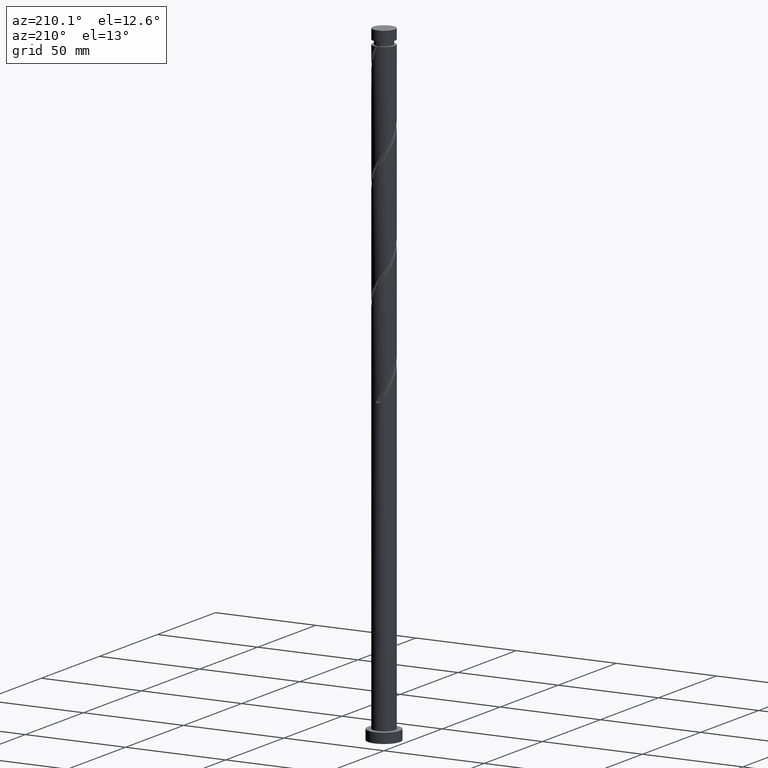
[diagram: clean part render]
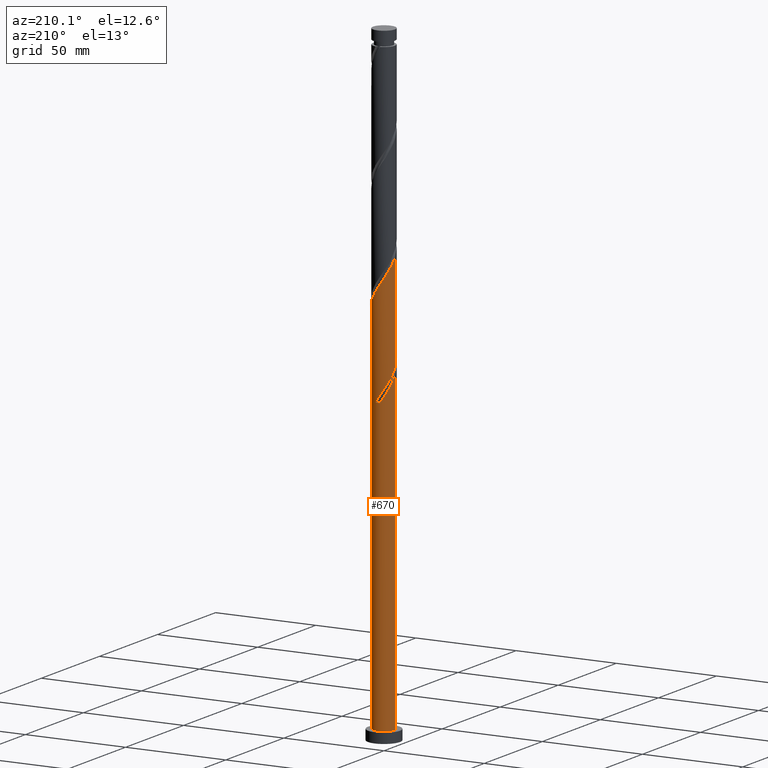
[diagram: same view with one face highlighted and labeled with its STEP entity id]
A machine part, auxiliary view. The second image highlights one B-rep face of the part: STEP entity #670.
In plain terms, the highlighted cylindrical surface (edge-blend (fillet) strip) has radius 5.5 mm, axis along (-0, -0, -1).
Its self-contained STEP definition (entity closure, byte-faithful):
#23 = CARTESIAN_POINT ( 'NONE',  ( -0.7518644484526483263, 5.483496091962813068, 153.1132921569053735 ) ) ;
#36 = CARTESIAN_POINT ( 'NONE',  ( -5.500000000000006217, -1.440337144827273553E-15, 214.2512750789992992 ) ) ;
#64 = CARTESIAN_POINT ( 'NONE',  ( -1.094486180817284104, 5.390000000000005898, 150.3007921569053735 ) ) ;
#82 = CARTESIAN_POINT ( 'NONE',  ( -2.266432961200590235, 5.011315359502294342, 152.1757921569053451 ) ) ;
#100 = DIRECTION ( 'NONE',  ( 0.000000000000000000, -0.000000000000000000, -1.000000000000000000 ) ) ;
#101 = CARTESIAN_POINT ( 'NONE',  ( 0.1323427068484833435, 5.498407533817776027, 200.9257921569053451 ) ) ;
#111 = CARTESIAN_POINT ( 'NONE',  ( 3.056606248755808775, 4.614237507918885761, 196.2382921569053167 ) ) ;
#116 = EDGE_CURVE ( 'NONE', #251, #1590, #287, .T. ) ;
#121 = CARTESIAN_POINT ( 'NONE',  ( -5.483496091962820174, 0.7518644484526507688, 160.6132921569054304 ) ) ;
#146 = CARTESIAN_POINT ( 'NONE',  ( -1.953206308703044236, 5.178707817116261047, 154.9882921569053735 ) ) ;
#160 = ORIENTED_EDGE ( 'NONE', *, *, #356, .F. ) ;
#234 = CARTESIAN_POINT ( 'NONE',  ( -2.266432961200590235, 5.011315359502294342, 204.6757921569053451 ) ) ;
#242 = CARTESIAN_POINT ( 'NONE',  ( 4.006735188219782806, 3.818390062696570553, 194.3632921569053735 ) ) ;
#251 = VERTEX_POINT ( 'NONE', #64 ) ;
#252 = CARTESIAN_POINT ( 'NONE',  ( -5.500000000000007105, 0.06618093441511935238, 214.1509123907742662 ) ) ;
#273 = CARTESIAN_POINT ( 'NONE',  ( -5.483496091962820174, 0.7518644484526507688, 213.1132921569054020 ) ) ;
#279 = LINE ( 'NONE', #1477, #1736 ) ;
#283 = DIRECTION ( 'NONE',  ( -0.000000000000000000, -0.000000000000000000, -1.000000000000000000 ) ) ;
#287 = CIRCLE ( 'NONE', #1621, 5.500000000000000000 ) ;
#307 = CARTESIAN_POINT ( 'NONE',  ( -5.499999999999998224, 2.686639233874724183E-15, 165.1003092348113910 ) ) ;
#356 = EDGE_CURVE ( 'NONE', #251, #1721, #1414, .T. ) ;
#374 = CARTESIAN_POINT ( 'NONE',  ( -3.324731329109432920, 4.381342441448544456, 154.0507921569053735 ) ) ;
#388 = CARTESIAN_POINT ( 'NONE',  ( -5.498407533817776027, 0.1323427068484820668, 214.0507921569053167 ) ) ;
#399 = EDGE_CURVE ( 'NONE', #1032, #1823, #418, .T. ) ;
#401 = CARTESIAN_POINT ( 'NONE',  ( -0.4871790347556850809, 5.513318975672735434, 201.8632921569054020 ) ) ;
#418 =( BOUNDED_CURVE ( )  B_SPLINE_CURVE ( 2, ( #551, #1142, #984, #1606, #1576, #994, #1586, #242, #421, #111, #1738, #1131, #716, #707, #101, #401, #1005, #1564, #234, #1287, #1877, #1717, #1597, #852, #695, #1886, #1727, #273, #388, #252, #863 ),
 .UNSPECIFIED., .F., .T. ) 
 B_SPLINE_CURVE_WITH_KNOTS ( ( 3, 2, 2, 2, 2, 2, 2, 2, 2, 2, 2, 2, 2, 2, 2, 3 ),
 ( 0.1795303401299220836, 0.1875000000000000000, 0.1964285714285713969, 0.2053571428571429047, 0.2142857142857143016, 0.2232142857142856984, 0.2321428571428570953, 0.2410714285714286031, 0.2500000000000000000, 0.2589285714285713969, 0.2678571428571429047, 0.2767857142857143016, 0.2857142857142856984, 0.2946428571428570953, 0.3035714285714286031, 0.3045303401299224721 ),
 .UNSPECIFIED. ) 
 CURVE ( )  GEOMETRIC_REPRESENTATION_ITEM ( )  RATIONAL_B_SPLINE_CURVE ( ( 0.9079949616362038567, 0.9039886423360669054, 0.9090909090909338186, 0.9033747362666085801, 0.9090909090909338186, 0.9033747362666085801, 0.9090909090909338186, 0.9033747362666085801, 0.9090909090909338186, 0.9033747362666085801, 0.9090909090909338186, 0.9033747362666085801, 0.9090909090909338186, 0.9033747362666085801, 0.9090909090909338186, 0.9033747362666085801, 0.9090909090909338186, 0.9033747362666085801, 0.9090909090909338186, 0.9033747362666085801, 0.9090909090909338186, 0.9033747362666085801, 0.9090909090909338186, 0.9033747362666085801, 0.9090909090909338186, 0.9033747362666085801, 0.9090909090909338186, 0.9033747362666085801, 0.9090909090909338186, 0.9084770030214752712, 0.9079949616362035236 ) ) 
 REPRESENTATION_ITEM ( '' )  );
#421 = CARTESIAN_POINT ( 'NONE',  ( 3.531670718487794680, 4.216313785307728601, 195.3007921569053451 ) ) ;
#443 = VERTEX_POINT ( 'NONE', #563 ) ;
#447 = CARTESIAN_POINT ( 'NONE',  ( -0.1323427068484809010, 5.498407533817768034, 152.1757921569053451 ) ) ;
#451 = VERTEX_POINT ( 'NONE', #1161 ) ;
#453 = CIRCLE ( 'NONE', #844, 5.500000000000000000 ) ;
#459 = CYLINDRICAL_SURFACE ( 'NONE', #1339, 5.500000000000000000 ) ;
#480 =( BOUNDED_CURVE ( )  B_SPLINE_CURVE ( 2, ( #307, #1036, #1360, #609, #735, #1197, #1183, #773, #1801, #1771, #600, #146, #1617, #23, #447, #1510, #909 ),
 .UNSPECIFIED., .F., .T. ) 
 B_SPLINE_CURVE_WITH_KNOTS ( ( 3, 2, 2, 2, 2, 2, 2, 2, 3 ),
 ( 0.9295303401299220836, 0.9375000000000000000, 0.9464285714285713969, 0.9553571428571429047, 0.9642857142857143016, 0.9732142857142856984, 0.9821428571428570953, 0.9910714285714286031, 1.000000000000000000 ),
 .UNSPECIFIED. ) 
 CURVE ( )  GEOMETRIC_REPRESENTATION_ITEM ( )  RATIONAL_B_SPLINE_CURVE ( ( 0.9079949616361981946, 0.9039886423360612433, 0.9090909090909280454, 0.9033747362666029179, 0.9090909090909280454, 0.9033747362666029179, 0.9090909090909280454, 0.9033747362666029179, 0.9090909090909280454, 0.9033747362666029179, 0.9090909090909280454, 0.9033747362666029179, 0.9090909090909280454, 0.9033747362666029179, 0.9090909090909280454, 0.9033747362666029179, 0.9090909090909280454 ) ) 
 REPRESENTATION_ITEM ( '' )  );
#487 = ORIENTED_EDGE ( 'NONE', *, *, #633, .F. ) ;
#498 = CARTESIAN_POINT ( 'NONE',  ( 1.094486180817286103, 5.389999999999997904, 150.3007921569053735 ) ) ;
#504 = ORIENTED_EDGE ( 'NONE', *, *, #116, .T. ) ;
#551 = CARTESIAN_POINT ( 'NONE',  ( 5.500000000000006217, 6.268824879040983257E-16, 188.0012750789992424 ) ) ;
#563 = CARTESIAN_POINT ( 'NONE',  ( -5.500000000000000000, 0.000000000000000000, 5.000000000000000000 ) ) ;
#572 = CARTESIAN_POINT ( 'NONE',  ( -5.178707817116268153, 1.953206308703048233, 158.7382921569054020 ) ) ;
#587 = VECTOR ( 'NONE', #770, 1000.000000000000000 ) ;
#600 = CARTESIAN_POINT ( 'NONE',  ( -2.504906278729422731, 4.896472662517569852, 155.9257921569053451 ) ) ;
#609 = CARTESIAN_POINT ( 'NONE',  ( -5.266681024327271921, 1.701793326878883406, 162.4882921569053735 ) ) ;
#623 = EDGE_LOOP ( 'NONE', ( #1484, #1400, #1318, #1320, #160, #504, #487, #1589 ) ) ;
#633 = EDGE_CURVE ( 'NONE', #1813, #1590, #480, .T. ) ;
#670 = ADVANCED_FACE ( 'NONE', ( #1208 ), #459, .T. ) ;
#673 = CARTESIAN_POINT ( 'NONE',  ( -1.701793326878885182, 5.266681024327279026, 151.2382921569053735 ) ) ;
#683 = DIRECTION ( 'NONE',  ( -1.000000000000000000, 0.000000000000000000, 0.000000000000000000 ) ) ;
#684 = CARTESIAN_POINT ( 'NONE',  ( -4.216313785307728601, 3.531670718487794236, 155.9257921569054020 ) ) ;
#695 = CARTESIAN_POINT ( 'NONE',  ( -4.896472662517576957, 2.504906278729428060, 210.3007921569053451 ) ) ;
#707 = CARTESIAN_POINT ( 'NONE',  ( 0.7518644484526517680, 5.483496091962820174, 199.9882921569054304 ) ) ;
#716 = CARTESIAN_POINT ( 'NONE',  ( 1.352535378577850222, 5.331101954539544607, 199.0507921569053167 ) ) ;
#735 = CARTESIAN_POINT ( 'NONE',  ( -5.011315359502285460, 2.266432961200587126, 161.5507921569053451 ) ) ;
#751 = VECTOR ( 'NONE', #1233, 1000.000000000000000 ) ;
#762 = DIRECTION ( 'NONE',  ( -0.000000000000000000, -0.000000000000000000, -1.000000000000000000 ) ) ;
#770 = DIRECTION ( 'NONE',  ( -0.000000000000000000, -0.000000000000000000, -1.000000000000000000 ) ) ;
#773 = CARTESIAN_POINT ( 'NONE',  ( -4.006735188219775701, 3.818390062696565668, 158.7382921569053735 ) ) ;
#844 = AXIS2_PLACEMENT_3D ( 'NONE', #1652, #1517, #1366 ) ;
#852 = CARTESIAN_POINT ( 'NONE',  ( -4.614237507918886649, 3.056606248755807442, 209.3632921569053735 ) ) ;
#863 = CARTESIAN_POINT ( 'NONE',  ( -5.500000000000006217, -1.440337144827273553E-15, 214.2512750789992992 ) ) ;
#892 = DIRECTION ( 'NONE',  ( -1.000000000000000000, 0.000000000000000000, 0.000000000000000000 ) ) ;
#909 = CARTESIAN_POINT ( 'NONE',  ( 1.094486180817286103, 5.389999999999997016, 150.3007921569053735 ) ) ;
#972 = CARTESIAN_POINT ( 'NONE',  ( 5.500000000000006217, 6.268824879040983257E-16, 188.0012750789992708 ) ) ;
#984 = CARTESIAN_POINT ( 'NONE',  ( 5.390000000000005898, 1.094486180817284326, 189.6757921569053735 ) ) ;
#994 = CARTESIAN_POINT ( 'NONE',  ( 4.755949694677310546, 2.831072595522295732, 192.4882921569054304 ) ) ;
#1005 = CARTESIAN_POINT ( 'NONE',  ( -1.094486180817284326, 5.390000000000005898, 202.8007921569053167 ) ) ;
#1032 = VERTEX_POINT ( 'NONE', #972 ) ;
#1036 = CARTESIAN_POINT ( 'NONE',  ( -5.499999999999998224, 0.5527707983925695956, 164.2620381558478471 ) ) ;
#1055 = CARTESIAN_POINT ( 'NONE',  ( 5.500000000000000000, 6.735557395310442023E-16, 315.0000000000000000 ) ) ;
#1057 = CARTESIAN_POINT ( 'NONE',  ( 0.000000000000000000, 0.000000000000000000, 315.0000000000000000 ) ) ;
#1131 = CARTESIAN_POINT ( 'NONE',  ( 1.953206308703050009, 5.178707817116267265, 198.1132921569054588 ) ) ;
#1141 = CARTESIAN_POINT ( 'NONE',  ( 0.000000000000000000, 0.000000000000000000, 150.3007921569054020 ) ) ;
#1142 = CARTESIAN_POINT ( 'NONE',  ( 5.500000000000005329, 0.5527707983925681523, 188.8395461579628716 ) ) ;
#1161 = CARTESIAN_POINT ( 'NONE',  ( 5.500000000000000000, 6.735557395310442023E-16, 5.000000000000000000 ) ) ;
#1183 = CARTESIAN_POINT ( 'NONE',  ( -4.381342441448538239, 3.324731329109428923, 159.6757921569052883 ) ) ;
#1197 = CARTESIAN_POINT ( 'NONE',  ( -4.755949694677300776, 2.831072595522292623, 160.6132921569053167 ) ) ;
#1208 = FACE_OUTER_BOUND ( 'NONE', #623, .T. ) ;
#1232 = EDGE_CURVE ( 'NONE', #1823, #1813, #279, .T. ) ;
#1233 = DIRECTION ( 'NONE',  ( -0.000000000000000000, -0.000000000000000000, -1.000000000000000000 ) ) ;
#1287 = CARTESIAN_POINT ( 'NONE',  ( -2.831072595522295732, 4.755949694677308770, 205.6132921569054304 ) ) ;
#1311 = CARTESIAN_POINT ( 'NONE',  ( -5.331101954539544607, 1.352535378577849334, 159.6757921569053735 ) ) ;
#1318 = ORIENTED_EDGE ( 'NONE', *, *, #1588, .T. ) ;
#1320 = ORIENTED_EDGE ( 'NONE', *, *, #1469, .F. ) ;
#1325 = EDGE_CURVE ( 'NONE', #1032, #451, #1633, .T. ) ;
#1339 = AXIS2_PLACEMENT_3D ( 'NONE', #1057, #283, #892 ) ;
#1360 = CARTESIAN_POINT ( 'NONE',  ( -5.389999999999997016, 1.094486180817284771, 163.4257921569053167 ) ) ;
#1366 = DIRECTION ( 'NONE',  ( 1.000000000000000000, 0.000000000000000000, 0.000000000000000000 ) ) ;
#1372 = CARTESIAN_POINT ( 'NONE',  ( -5.499999999999998224, 2.686639233874724183E-15, 165.1003092348113910 ) ) ;
#1400 = ORIENTED_EDGE ( 'NONE', *, *, #1325, .T. ) ;
#1405 = CARTESIAN_POINT ( 'NONE',  ( -1.094486180817284104, 5.390000000000005898, 150.3007921569053735 ) ) ;
#1414 =( BOUNDED_CURVE ( )  B_SPLINE_CURVE ( 2, ( #1405, #673, #82, #1710, #374, #1415, #684, #1821, #1869, #572, #1311, #121, #1905, #1748, #1433 ),
 .UNSPECIFIED., .F., .T. ) 
 B_SPLINE_CURVE_WITH_KNOTS ( ( 3, 2, 2, 2, 2, 2, 2, 3 ),
 ( 0.000000000000000000, 0.008928571428571396851, 0.01785714285714290472, 0.02678571428571430504, 0.03571428571428569843, 0.04464285714285709528, 0.05357142857142861009, 0.05453034012992206969 ),
 .UNSPECIFIED. ) 
 CURVE ( )  GEOMETRIC_REPRESENTATION_ITEM ( )  RATIONAL_B_SPLINE_CURVE ( ( 0.9090909090909338186, 0.9033747362666085801, 0.9090909090909338186, 0.9033747362666085801, 0.9090909090909338186, 0.9033747362666085801, 0.9090909090909338186, 0.9033747362666085801, 0.9090909090909338186, 0.9033747362666085801, 0.9090909090909338186, 0.9033747362666085801, 0.9090909090909338186, 0.9084770030214754932, 0.9079949616362037457 ) ) 
 REPRESENTATION_ITEM ( '' )  );
#1415 = CARTESIAN_POINT ( 'NONE',  ( -3.818390062696571441, 4.006735188219782806, 154.9882921569053451 ) ) ;
#1433 = CARTESIAN_POINT ( 'NONE',  ( -5.500000000000006217, -1.440337144827273553E-15, 161.7512750789992992 ) ) ;
#1469 = EDGE_CURVE ( 'NONE', #1721, #443, #1527, .T. ) ;
#1477 = CARTESIAN_POINT ( 'NONE',  ( -5.500000000000000000, 0.000000000000000000, 315.0000000000000000 ) ) ;
#1484 = ORIENTED_EDGE ( 'NONE', *, *, #399, .F. ) ;
#1508 = CARTESIAN_POINT ( 'NONE',  ( -5.500000000000000000, 0.000000000000000000, 315.0000000000000000 ) ) ;
#1510 = CARTESIAN_POINT ( 'NONE',  ( 0.4871790347556864131, 5.513318975672725664, 151.2382921569053735 ) ) ;
#1517 = DIRECTION ( 'NONE',  ( 0.000000000000000000, 0.000000000000000000, 1.000000000000000000 ) ) ;
#1527 = LINE ( 'NONE', #1508, #751 ) ;
#1564 = CARTESIAN_POINT ( 'NONE',  ( -1.701793326878885182, 5.266681024327279026, 203.7382921569054304 ) ) ;
#1576 = CARTESIAN_POINT ( 'NONE',  ( 5.011315359502294342, 2.266432961200590235, 191.5507921569053167 ) ) ;
#1586 = CARTESIAN_POINT ( 'NONE',  ( 4.381342441448545344, 3.324731329109432032, 193.4257921569053451 ) ) ;
#1588 = EDGE_CURVE ( 'NONE', #451, #443, #453, .T. ) ;
#1589 = ORIENTED_EDGE ( 'NONE', *, *, #1232, .F. ) ;
#1590 = VERTEX_POINT ( 'NONE', #498 ) ;
#1597 = CARTESIAN_POINT ( 'NONE',  ( -4.216313785307728601, 3.531670718487794236, 208.4257921569053735 ) ) ;
#1606 = CARTESIAN_POINT ( 'NONE',  ( 5.266681024327279026, 1.701793326878884072, 190.6132921569054304 ) ) ;
#1617 = CARTESIAN_POINT ( 'NONE',  ( -1.352535378577846004, 5.331101954539536614, 154.0507921569053735 ) ) ;
#1621 = AXIS2_PLACEMENT_3D ( 'NONE', #1141, #100, #683 ) ;
#1633 = LINE ( 'NONE', #1055, #587 ) ;
#1652 = CARTESIAN_POINT ( 'NONE',  ( 0.000000000000000000, 0.000000000000000000, 5.000000000000000000 ) ) ;
#1710 = CARTESIAN_POINT ( 'NONE',  ( -2.831072595522295732, 4.755949694677308770, 153.1132921569054020 ) ) ;
#1717 = CARTESIAN_POINT ( 'NONE',  ( -3.818390062696571441, 4.006735188219782806, 207.4882921569054020 ) ) ;
#1721 = VERTEX_POINT ( 'NONE', #1722 ) ;
#1722 = CARTESIAN_POINT ( 'NONE',  ( -5.500000000000006217, -1.440337144827273553E-15, 161.7512750789993277 ) ) ;
#1727 = CARTESIAN_POINT ( 'NONE',  ( -5.331101954539544607, 1.352535378577849334, 212.1757921569052883 ) ) ;
#1736 = VECTOR ( 'NONE', #762, 1000.000000000000000 ) ;
#1738 = CARTESIAN_POINT ( 'NONE',  ( 2.504906278729428948, 4.896472662517576069, 197.1757921569053451 ) ) ;
#1748 = CARTESIAN_POINT ( 'NONE',  ( -5.500000000000006217, 0.06618093441514713571, 161.6509123907742662 ) ) ;
#1771 = CARTESIAN_POINT ( 'NONE',  ( -3.056606248755802113, 4.614237507918880432, 156.8632921569053451 ) ) ;
#1801 = CARTESIAN_POINT ( 'NONE',  ( -3.531670718487788019, 4.216313785307721496, 157.8007921569052883 ) ) ;
#1813 = VERTEX_POINT ( 'NONE', #1372 ) ;
#1821 = CARTESIAN_POINT ( 'NONE',  ( -4.614237507918886649, 3.056606248755807442, 156.8632921569054020 ) ) ;
#1823 = VERTEX_POINT ( 'NONE', #36 ) ;
#1869 = CARTESIAN_POINT ( 'NONE',  ( -4.896472662517576957, 2.504906278729428060, 157.8007921569053451 ) ) ;
#1877 = CARTESIAN_POINT ( 'NONE',  ( -3.324731329109432920, 4.381342441448544456, 206.5507921569053167 ) ) ;
#1886 = CARTESIAN_POINT ( 'NONE',  ( -5.178707817116268153, 1.953206308703048233, 211.2382921569054020 ) ) ;
#1905 = CARTESIAN_POINT ( 'NONE',  ( -5.498407533817776027, 0.1323427068484820668, 161.5507921569053735 ) ) ;